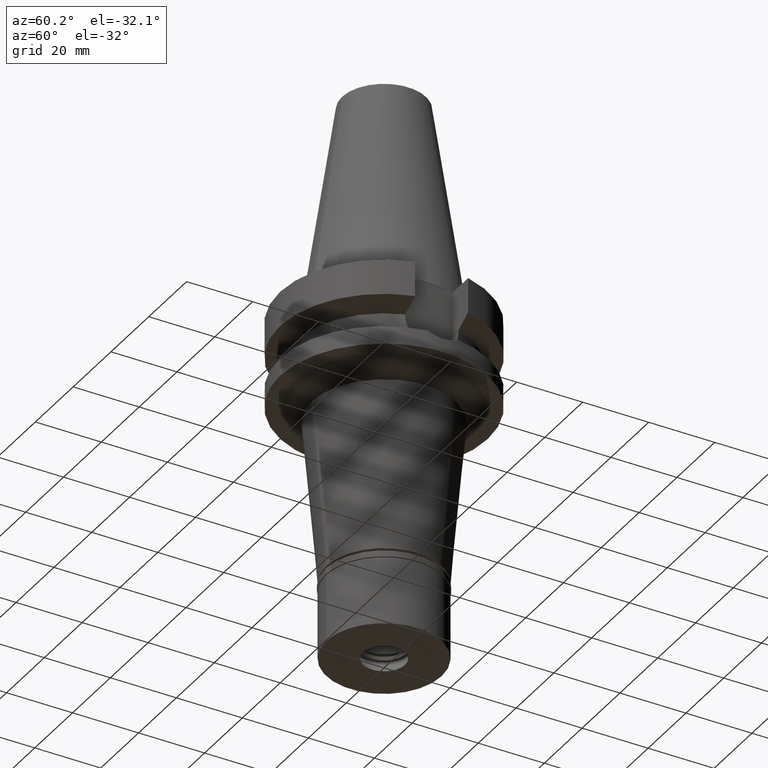
[diagram: clean part render]
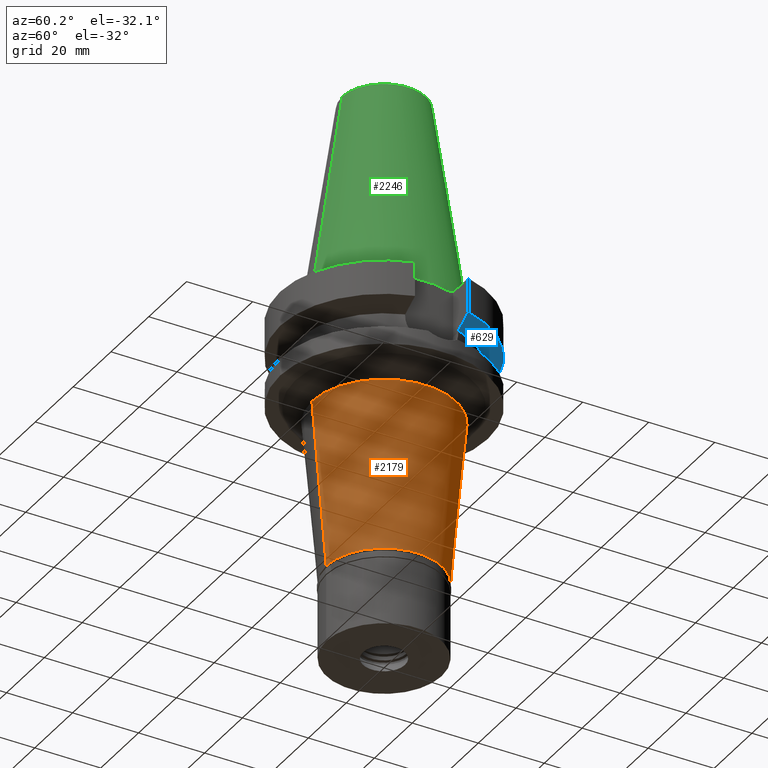
[diagram: same view with three faces highlighted in distinct colors, each labeled with its STEP entity id]
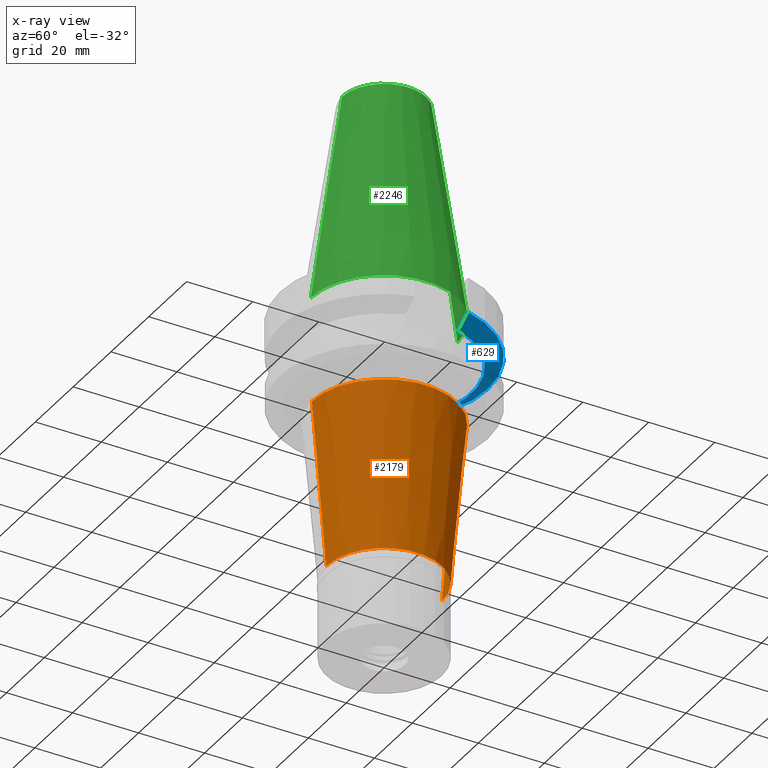
[diagram: x-ray of the same camera — body ghosted, the three highlighted faces saturated]
A machine part, auxiliary view with three faces highlighted in distinct colors.
The next image is the same camera in x-ray (body ghosted, the three faces saturated) — at least one of them is partly hidden behind the body in this view.
Their STEP definitions:

[orange] entity #2179 — the highlighted conical surface has half-angle 5 deg.
#52 = EDGE_CURVE ( 'NONE', #2648, #1552, #2206, .T. ) ;
#73 = AXIS2_PLACEMENT_3D ( 'NONE', #3013, #2786, #3064 ) ;
#76 = DIRECTION ( 'NONE',  ( 0.0000000000000000000, 0.0000000000000000000, 1.000000000000000000 ) ) ;
#312 = EDGE_CURVE ( 'NONE', #1009, #1552, #2867, .T. ) ;
#325 = ORIENTED_EDGE ( 'NONE', *, *, #312, .F. ) ;
#359 = DIRECTION ( 'NONE',  ( 0.0000000000000000000, -1.000000000000000000, 0.0000000000000000000 ) ) ;
#411 = CARTESIAN_POINT ( 'NONE',  ( 0.0000000000000000000, -21.84818657723999635, -32.00000000000000000 ) ) ;
#458 = VERTEX_POINT ( 'NONE', #411 ) ;
#751 = ORIENTED_EDGE ( 'NONE', *, *, #1006, .T. ) ;
#1006 = EDGE_CURVE ( 'NONE', #458, #2648, #3124, .T. ) ;
#1009 = VERTEX_POINT ( 'NONE', #2441 ) ;
#1052 = FACE_OUTER_BOUND ( 'NONE', #1782, .T. ) ;
#1054 = VECTOR ( 'NONE', #1834, 1000.000000000000000 ) ;
#1237 = DIRECTION ( 'NONE',  ( 0.0000000000000000000, 0.0000000000000000000, 1.000000000000000000 ) ) ;
#1385 = CARTESIAN_POINT ( 'NONE',  ( 0.0000000000000000000, 21.84818657723999635, -32.00000000000000000 ) ) ;
#1398 = AXIS2_PLACEMENT_3D ( 'NONE', #2017, #1237, #2679 ) ;
#1445 = ORIENTED_EDGE ( 'NONE', *, *, #52, .T. ) ;
#1552 = VERTEX_POINT ( 'NONE', #2512 ) ;
#1685 = EDGE_CURVE ( 'NONE', #458, #1009, #1783, .T. ) ;
#1782 = EDGE_LOOP ( 'NONE', ( #2809, #751, #1445, #325 ) ) ;
#1783 = CIRCLE ( 'NONE', #73, 21.84818657723999635 ) ;
#1834 = DIRECTION ( 'NONE',  ( 0.0000000000000000000, -0.08715574274767391716, -0.9961946980917442129 ) ) ;
#1900 = CONICAL_SURFACE ( 'NONE', #1398, 19.67409328861999995, 0.08726646259969973729 ) ;
#2017 = CARTESIAN_POINT ( 'NONE',  ( 0.0000000000000000000, 0.0000000000000000000, -56.84999999999999432 ) ) ;
#2179 = ADVANCED_FACE ( 'NONE', ( #1052 ), #1900, .T. ) ;
#2206 = CIRCLE ( 'NONE', #2423, 17.50000000000000000 ) ;
#2250 = CARTESIAN_POINT ( 'NONE',  ( 0.0000000000000000000, 0.0000000000000000000, -81.69999999999998863 ) ) ;
#2392 = DIRECTION ( 'NONE',  ( 0.0000000000000000000, 0.08715574274767391716, -0.9961946980917442129 ) ) ;
#2423 = AXIS2_PLACEMENT_3D ( 'NONE', #2250, #76, #359 ) ;
#2441 = CARTESIAN_POINT ( 'NONE',  ( 0.0000000000000000000, 21.84818657723999635, -32.00000000000000000 ) ) ;
#2446 = CARTESIAN_POINT ( 'NONE',  ( 0.0000000000000000000, -17.50000000000000000, -81.69999999999998863 ) ) ;
#2512 = CARTESIAN_POINT ( 'NONE',  ( 0.0000000000000000000, 17.50000000000000000, -81.69999999999998863 ) ) ;
#2648 = VERTEX_POINT ( 'NONE', #2446 ) ;
#2679 = DIRECTION ( 'NONE',  ( 0.0000000000000000000, 1.000000000000000000, 0.0000000000000000000 ) ) ;
#2786 = DIRECTION ( 'NONE',  ( 0.0000000000000000000, 0.0000000000000000000, 1.000000000000000000 ) ) ;
#2809 = ORIENTED_EDGE ( 'NONE', *, *, #1685, .F. ) ;
#2866 = CARTESIAN_POINT ( 'NONE',  ( 0.0000000000000000000, -21.84818657723999635, -32.00000000000000000 ) ) ;
#2867 = LINE ( 'NONE', #1385, #1054 ) ;
#3013 = CARTESIAN_POINT ( 'NONE',  ( 0.0000000000000000000, 0.0000000000000000000, -32.00000000000000000 ) ) ;
#3019 = VECTOR ( 'NONE', #2392, 1000.000000000000000 ) ;
#3064 = DIRECTION ( 'NONE',  ( 0.0000000000000000000, -1.000000000000000000, 0.0000000000000000000 ) ) ;
#3124 = LINE ( 'NONE', #2866, #3019 ) ;

[blue] entity #629 — the highlighted conical surface has half-angle 60 deg.
#35 = EDGE_CURVE ( 'NONE', #1215, #840, #994, .T. ) ;
#36 = AXIS2_PLACEMENT_3D ( 'NONE', #1796, #1268, #1056 ) ;
#191 = DIRECTION ( 'NONE',  ( 0.0000000000000000000, 0.0000000000000000000, 1.000000000000000000 ) ) ;
#245 = VERTEX_POINT ( 'NONE', #2070 ) ;
#292 = CARTESIAN_POINT ( 'NONE',  ( -30.45402162726999862, 8.050004144470999989, -11.56546832103999911 ) ) ;
#314 = CARTESIAN_POINT ( 'NONE',  ( -26.83758145575607656, 8.050003174199982681, -13.57772736772315092 ) ) ;
#357 = CARTESIAN_POINT ( 'NONE',  ( 28.57292328183043395, 8.049998555639399811, -12.61549606030791182 ) ) ;
#561 = DIRECTION ( 'NONE',  ( 0.0000000000000000000, 1.000000000000000000, 0.0000000000000000000 ) ) ;
#629 = ADVANCED_FACE ( 'NONE', ( #1603 ), #1910, .T. ) ;
#699 = ORIENTED_EDGE ( 'NONE', *, *, #1650, .F. ) ;
#773 = VERTEX_POINT ( 'NONE', #292 ) ;
#840 = VERTEX_POINT ( 'NONE', #2245 ) ;
#842 = AXIS2_PLACEMENT_3D ( 'NONE', #2644, #191, #1418 ) ;
#941 = AXIS2_PLACEMENT_3D ( 'NONE', #1758, #2196, #561 ) ;
#994 = CIRCLE ( 'NONE', #36, 26.50000000000000711 ) ;
#1056 = DIRECTION ( 'NONE',  ( -0.9527442516822307583, 0.3037735849057093818, 0.0000000000000000000 ) ) ;
#1091 = CARTESIAN_POINT ( 'NONE',  ( -30.45402162726999862, 8.050004144470999989, -11.56546832103999911 ) ) ;
#1215 = VERTEX_POINT ( 'NONE', #3030 ) ;
#1268 = DIRECTION ( 'NONE',  ( 0.0000000000000000000, 0.0000000000000000000, -1.000000000000000000 ) ) ;
#1292 = CARTESIAN_POINT ( 'NONE',  ( -28.57295868805210048, 8.050008283907132522, -12.61547481758397105 ) ) ;
#1418 = DIRECTION ( 'NONE',  ( 0.0000000000000000000, 1.000000000000000000, 0.0000000000000000000 ) ) ;
#1603 = FACE_OUTER_BOUND ( 'NONE', #2182, .T. ) ;
#1650 = EDGE_CURVE ( 'NONE', #245, #773, #2412, .T. ) ;
#1659 = EDGE_CURVE ( 'NONE', #245, #840, #2794, .T. ) ;
#1711 = CARTESIAN_POINT ( 'NONE',  ( 30.45402291380999671, 8.049999277350000426, -11.56551216141999916 ) ) ;
#1758 = CARTESIAN_POINT ( 'NONE',  ( 0.0000000000000000000, 1.065333950388000029E-14, -11.56550565266999975 ) ) ;
#1796 = CARTESIAN_POINT ( 'NONE',  ( 0.0000000000000000000, 1.065333950388000029E-14, -14.45225699861000024 ) ) ;
#1905 = B_SPLINE_CURVE_WITH_KNOTS ( 'NONE', 3,
 ( #2763, #314, #1292, #1091 ),
 .UNSPECIFIED., .F., .F.,
 ( 4, 4 ),
 ( 0.0000000000000000000, 1.000000000000000000 ),
 .UNSPECIFIED. ) ;
#1910 = CONICAL_SURFACE ( 'NONE', #842, 29.00000000000000000, 1.047197551196400456 ) ;
#1932 = EDGE_CURVE ( 'NONE', #1215, #773, #1905, .T. ) ;
#2070 = CARTESIAN_POINT ( 'NONE',  ( 30.45402291380999671, 8.049999277350000426, -11.56551216141999916 ) ) ;
#2115 = ORIENTED_EDGE ( 'NONE', *, *, #1659, .T. ) ;
#2182 = EDGE_LOOP ( 'NONE', ( #699, #2115, #2279, #2407 ) ) ;
#2196 = DIRECTION ( 'NONE',  ( 0.0000000000000000000, 0.0000000000000000000, 1.000000000000000000 ) ) ;
#2245 = CARTESIAN_POINT ( 'NONE',  ( 25.24772413154000006, 8.049995414761999868, -14.45229203581000021 ) ) ;
#2279 = ORIENTED_EDGE ( 'NONE', *, *, #35, .F. ) ;
#2407 = ORIENTED_EDGE ( 'NONE', *, *, #1932, .T. ) ;
#2412 = CIRCLE ( 'NONE', #941, 31.50000000000000000 ) ;
#2644 = CARTESIAN_POINT ( 'NONE',  ( 0.0000000000000000000, 1.065333950388000029E-14, -13.00888132564000088 ) ) ;
#2763 = CARTESIAN_POINT ( 'NONE',  ( -25.24772216409000336, 8.050001585388001146, -14.45224488484999981 ) ) ;
#2794 = B_SPLINE_CURVE_WITH_KNOTS ( 'NONE', 3,
 ( #1711, #357, #2801, #2816 ),
 .UNSPECIFIED., .F., .F.,
 ( 4, 4 ),
 ( 0.0000000000000000000, 1.000000000000000000 ),
 .UNSPECIFIED. ) ;
#2801 = CARTESIAN_POINT ( 'NONE',  ( 26.83754615112752617, 8.049990819371355855, -13.57774888632813060 ) ) ;
#2816 = CARTESIAN_POINT ( 'NONE',  ( 25.24772413154000006, 8.049995414761999868, -14.45229203581000021 ) ) ;
#3030 = CARTESIAN_POINT ( 'NONE',  ( -25.24772216409000336, 8.050001585388001146, -14.45224488484999981 ) ) ;

[green] entity #2246 — the highlighted conical surface has half-angle 8.297 deg.
#177 = CONICAL_SURFACE ( 'NONE', #2733, 17.45633449714999941, 0.1448099680379422438 ) ;
#192 = ORIENTED_EDGE ( 'NONE', *, *, #3101, .F. ) ;
#236 = DIRECTION ( 'NONE',  ( 0.0000000000000000000, 0.0000000000000000000, -1.000000000000000000 ) ) ;
#376 = AXIS2_PLACEMENT_3D ( 'NONE', #1045, #825, #1571 ) ;
#508 = CARTESIAN_POINT ( 'NONE',  ( 0.0000000000000000000, -12.68766899429999917, 65.40000000000000568 ) ) ;
#560 = CARTESIAN_POINT ( 'NONE',  ( 0.0000000000000000000, 1.625106302469000024E-14, 32.70000000000000284 ) ) ;
#624 = LINE ( 'NONE', #706, #2053 ) ;
#670 = VERTEX_POINT ( 'NONE', #2623 ) ;
#706 = CARTESIAN_POINT ( 'NONE',  ( 0.0000000000000000000, 12.68766899429999917, 65.40000000000000568 ) ) ;
#814 = EDGE_CURVE ( 'NONE', #2022, #1797, #1314, .T. ) ;
#825 = DIRECTION ( 'NONE',  ( 0.0000000000000000000, 0.0000000000000000000, -1.000000000000000000 ) ) ;
#866 = EDGE_LOOP ( 'NONE', ( #1281, #2345, #2108, #192 ) ) ;
#910 = EDGE_CURVE ( 'NONE', #1855, #2022, #2687, .T. ) ;
#922 = DIRECTION ( 'NONE',  ( 0.0000000000000000000, 0.1443043893539925626, -0.9895333461855498891 ) ) ;
#942 = DIRECTION ( 'NONE',  ( 0.0000000000000000000, 1.000000000000000000, 0.0000000000000000000 ) ) ;
#1045 = CARTESIAN_POINT ( 'NONE',  ( 0.0000000000000000000, 1.625106302469000024E-14, 2.842170943039999687E-14 ) ) ;
#1075 = CARTESIAN_POINT ( 'NONE',  ( 0.0000000000000000000, 12.68766899429999917, 65.40000000000000568 ) ) ;
#1101 = CARTESIAN_POINT ( 'NONE',  ( 0.0000000000000000000, -12.68766899429999917, 65.40000000000000568 ) ) ;
#1211 = AXIS2_PLACEMENT_3D ( 'NONE', #1656, #236, #942 ) ;
#1281 = ORIENTED_EDGE ( 'NONE', *, *, #910, .T. ) ;
#1314 = LINE ( 'NONE', #1101, #2995 ) ;
#1530 = DIRECTION ( 'NONE',  ( 0.0000000000000000000, -1.000000000000000000, 0.0000000000000000000 ) ) ;
#1571 = DIRECTION ( 'NONE',  ( 0.0000000000000000000, 1.000000000000000000, 0.0000000000000000000 ) ) ;
#1594 = FACE_OUTER_BOUND ( 'NONE', #866, .T. ) ;
#1656 = CARTESIAN_POINT ( 'NONE',  ( 0.0000000000000000000, 1.625106302469000024E-14, 65.40000000000000568 ) ) ;
#1797 = VERTEX_POINT ( 'NONE', #2285 ) ;
#1810 = DIRECTION ( 'NONE',  ( 0.0000000000000000000, -0.1443043893539925626, -0.9895333461855498891 ) ) ;
#1855 = VERTEX_POINT ( 'NONE', #1075 ) ;
#1886 = EDGE_CURVE ( 'NONE', #670, #1797, #3131, .T. ) ;
#2022 = VERTEX_POINT ( 'NONE', #508 ) ;
#2053 = VECTOR ( 'NONE', #922, 1000.000000000000114 ) ;
#2108 = ORIENTED_EDGE ( 'NONE', *, *, #1886, .F. ) ;
#2246 = ADVANCED_FACE ( 'NONE', ( #1594 ), #177, .T. ) ;
#2285 = CARTESIAN_POINT ( 'NONE',  ( 0.0000000000000000000, -22.22500000000000142, 7.815970093360999808E-14 ) ) ;
#2345 = ORIENTED_EDGE ( 'NONE', *, *, #814, .T. ) ;
#2545 = DIRECTION ( 'NONE',  ( 0.0000000000000000000, 0.0000000000000000000, -1.000000000000000000 ) ) ;
#2623 = CARTESIAN_POINT ( 'NONE',  ( 0.0000000000000000000, 22.22500000000000142, 7.815970093360999808E-14 ) ) ;
#2687 = CIRCLE ( 'NONE', #1211, 12.68766899429999917 ) ;
#2733 = AXIS2_PLACEMENT_3D ( 'NONE', #560, #2545, #1530 ) ;
#2995 = VECTOR ( 'NONE', #1810, 1000.000000000000114 ) ;
#3101 = EDGE_CURVE ( 'NONE', #1855, #670, #624, .T. ) ;
#3131 = CIRCLE ( 'NONE', #376, 22.22500000000000142 ) ;